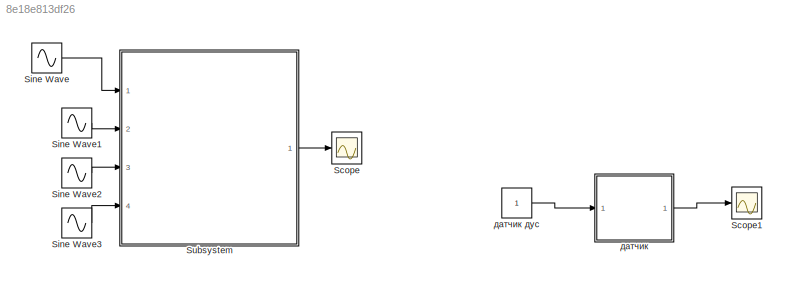
MODEL slx_8e18e813df26
KIND model
CONFIG AbsTol = auto
CONFIG EnableMultiTasking = off
CONFIG FixedStep = 0.01
CONFIG MaxStep = auto
CONFIG MinStep = auto
CONFIG RelTol = 1e-3
CONFIG SampleTimeConstraint = Unconstrained
CONFIG Solver = FixedStepDiscrete
CONFIG SolverName = FixedStepDiscrete
CONFIG StartTime = 0.0
CONFIG StopTime = 10.0
BLOCK [Scope] Scope
  Floating = off
  NumInputPorts = 1
  Ports = [1]
  ScopeSpecificationString = Simulink.scopes.TimeScopeBlockCfg('CurrentConfiguration', extmgr.ConfigurationSet(extmgr.Configuration('Core','General UI',true),extmgr.Configuration('Core','Source UI',true),extmgr.Configuration('Sources','WiredSimulink',true),extmgr.Configuration('Visuals','Time Domain',true,'SerializedDisplays',{struct('MinYLimReal','1.79641','MaxYLimReal','2.21904','YLabelReal','','MinYLimMag','1.79641','MaxYL...<+1327ch>
BLOCK [Scope] Scope1
  Floating = off
  NumInputPorts = 1
  Ports = [1]
  ScopeSpecificationString = Simulink.scopes.TimeScopeBlockCfg('CurrentConfiguration', extmgr.ConfigurationSet(extmgr.Configuration('Core','General UI',true),extmgr.Configuration('Core','Source UI',true),extmgr.Configuration('Sources','WiredSimulink',true,'DataLoggingVariableName','ScopeData1'),extmgr.Configuration('Visuals','Time Domain',true,'SerializedDisplays',{struct('MinYLimReal','0.79657','MaxYLimReal','1.21858','YLabe...<+1367ch>
BLOCK [Sin] Sine Wave
  Ports = [0, 1]
  SampleTime = 0
BLOCK [Sin] Sine Wave1
  Ports = [0, 1]
  SampleTime = 0
BLOCK [Sin] Sine Wave2
  Ports = [0, 1]
  SampleTime = 0
BLOCK [Sin] Sine Wave3
  Ports = [0, 1]
  SampleTime = 0
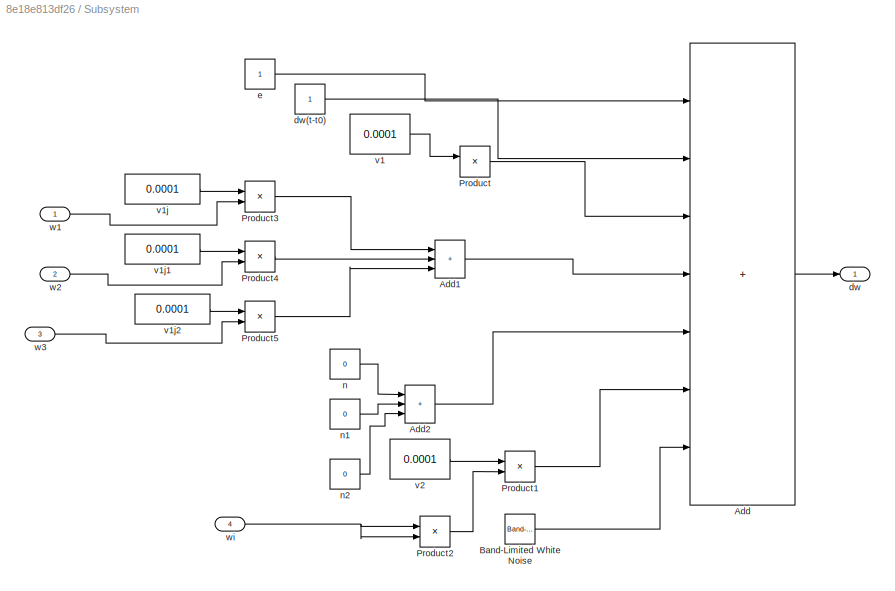
BLOCK [SubSystem] Subsystem
  Ports = [4, 1]
  RequestExecContextInheritance = off
BLOCK [Sum] Subsystem/Add
  IconShape = rectangular
  Inputs = +++++++
  Ports = [7, 1]
BLOCK [Sum] Subsystem/Add1
  IconShape = rectangular
  Inputs = +++
  Ports = [3, 1]
BLOCK [Sum] Subsystem/Add2
  IconShape = rectangular
  Inputs = +++
  Ports = [3, 1]
BLOCK [Reference] Subsystem/Band-Limited White Noise  REF=simulink/Sources/Band-Limited
White Noise
  Ports = [0, 1]
  SourceBlock = simulink/Sources/Band-Limited\nWhite Noise
  SourceProductBaseCode = SL
  SourceType = Band-Limited White Noise.
BLOCK [Product] Subsystem/Product
  Ports = [2, 1]
BLOCK [Product] Subsystem/Product1
  Ports = [2, 1]
BLOCK [Product] Subsystem/Product2
  Ports = [2, 1]
BLOCK [Product] Subsystem/Product3
  Ports = [2, 1]
BLOCK [Product] Subsystem/Product4
  Ports = [2, 1]
BLOCK [Product] Subsystem/Product5
  Ports = [2, 1]
BLOCK [Outport] Subsystem/dw
BLOCK [Constant] Subsystem/dw(t-t0)
BLOCK [Constant] Subsystem/e
BLOCK [Constant] Subsystem/n
  Value = 0
BLOCK [Constant] Subsystem/n1
  Value = 0
BLOCK [Constant] Subsystem/n2
  Value = 0
BLOCK [Constant] Subsystem/v1
  Value = 0.0001
BLOCK [Constant] Subsystem/v1j
  Value = 0.0001
BLOCK [Constant] Subsystem/v1j1
  Value = 0.0001
BLOCK [Constant] Subsystem/v1j2
  Value = 0.0001
BLOCK [Constant] Subsystem/v2
  Value = 0.0001
BLOCK [Inport] Subsystem/w1
BLOCK [Inport] Subsystem/w2
  Port = 2
BLOCK [Inport] Subsystem/w3
  Port = 3
BLOCK [Inport] Subsystem/wi
  Port = 4
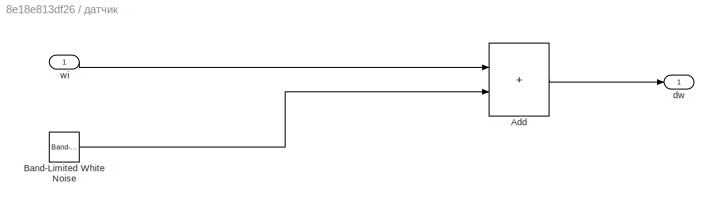
BLOCK [SubSystem] датчик
  Ports = [1, 1]
  RequestExecContextInheritance = off
BLOCK [Constant] датчик дус
BLOCK [Sum] датчик/Add
  IconShape = rectangular
  Ports = [2, 1]
BLOCK [Reference] датчик/Band-Limited White Noise  REF=simulink/Sources/Band-Limited
White Noise
  Ports = [0, 1]
  SourceBlock = simulink/Sources/Band-Limited\nWhite Noise
  SourceProductBaseCode = SL
  SourceType = Band-Limited White Noise.
BLOCK [Outport] датчик/dw
BLOCK [Inport] датчик/wi
LINE Sine Wave1:1 -> Subsystem:2
LINE Sine Wave2:1 -> Subsystem:3
LINE Sine Wave3:1 -> Subsystem:4
LINE Sine Wave:1 -> Subsystem:1
LINE Subsystem/Add1:1 -> Subsystem/Add:4
LINE Subsystem/Add2:1 -> Subsystem/Add:5
LINE Subsystem/Add:1 -> Subsystem/dw:1
LINE Subsystem/Band-Limited White Noise:1 -> Subsystem/Add:7
LINE Subsystem/Product1:1 -> Subsystem/Add:6
LINE Subsystem/Product2:1 -> Subsystem/Product1:2
LINE Subsystem/Product3:1 -> Subsystem/Add1:1
LINE Subsystem/Product4:1 -> Subsystem/Add1:2
LINE Subsystem/Product5:1 -> Subsystem/Add1:3
LINE Subsystem/Product:1 -> Subsystem/Add:3
LINE Subsystem/dw(t-t0):1 -> Subsystem/Add:2
LINE Subsystem/e:1 -> Subsystem/Add:1
LINE Subsystem/n1:1 -> Subsystem/Add2:2
LINE Subsystem/n2:1 -> Subsystem/Add2:3
LINE Subsystem/n:1 -> Subsystem/Add2:1
LINE Subsystem/v1:1 -> Subsystem/Product:1
LINE Subsystem/v1j1:1 -> Subsystem/Product4:1
LINE Subsystem/v1j2:1 -> Subsystem/Product5:1
LINE Subsystem/v1j:1 -> Subsystem/Product3:1
LINE Subsystem/v2:1 -> Subsystem/Product1:1
LINE Subsystem/w1:1 -> Subsystem/Product3:2
LINE Subsystem/w2:1 -> Subsystem/Product4:2
LINE Subsystem/w3:1 -> Subsystem/Product5:2
NET Subsystem/wi:1 -> Subsystem/Product2:1, Subsystem/Product2:2
LINE Subsystem:1 -> Scope:1
LINE датчик дус:1 -> датчик:1
LINE датчик/Add:1 -> датчик/dw:1
LINE датчик/Band-Limited White Noise:1 -> датчик/Add:2
LINE датчик/wi:1 -> датчик/Add:1
LINE датчик:1 -> Scope1:1
note: NET lines group one-source signal fan-out (src -> all destinations, sorted); 1:1 wires keep LINE
